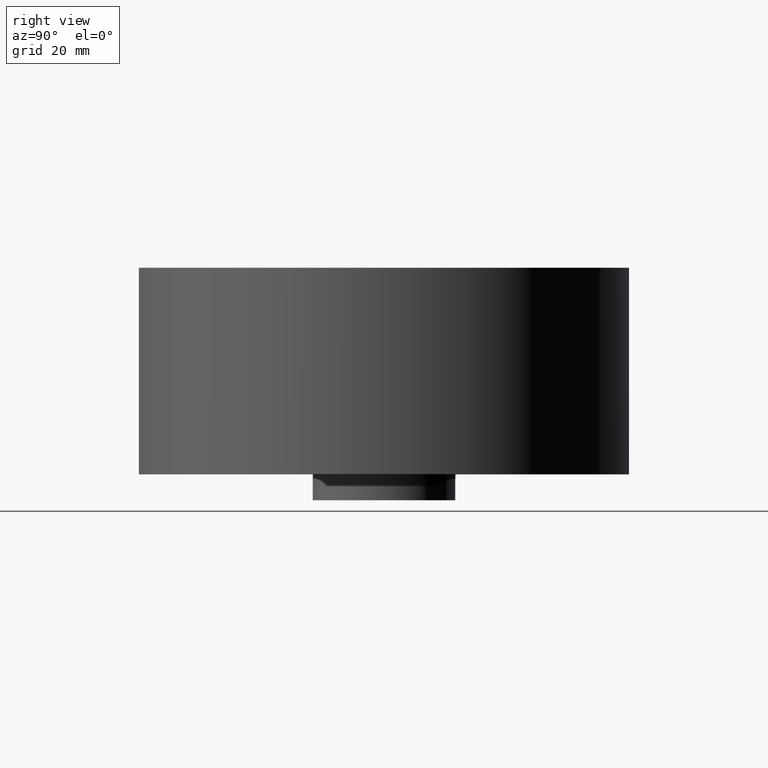
[diagram: clean part render]
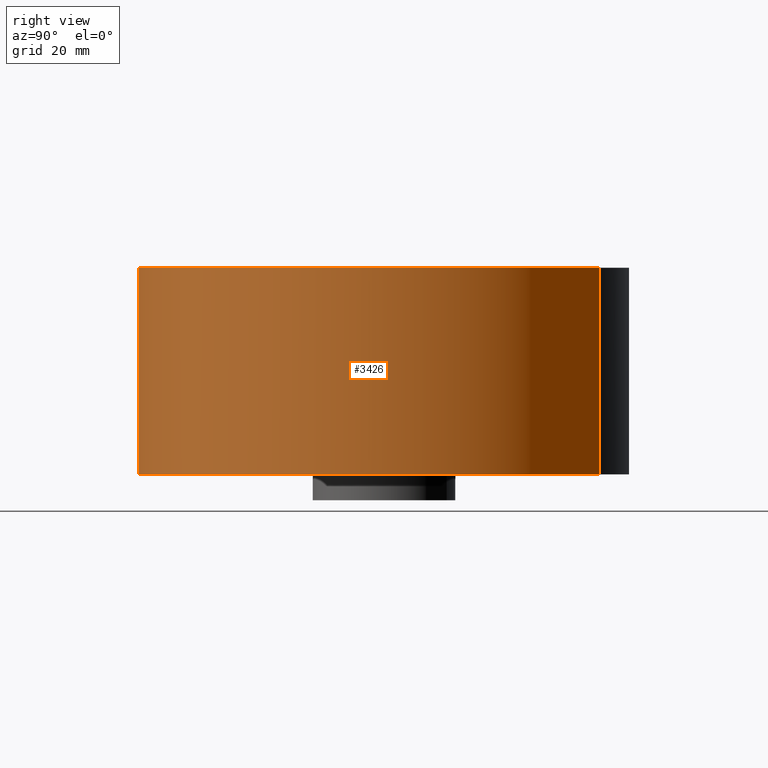
[diagram: same view with one face highlighted and labeled with its STEP entity id]
A machine part, right view. The second image highlights one B-rep face of the part: STEP entity #3426.
In plain terms, the highlighted cylindrical surface (partial cylindrical patch) has radius 60.325 mm, axis along (0, 0, -1).
Its self-contained STEP definition (entity closure, byte-faithful):
#3300=AXIS2_PLACEMENT_3D('Circle Axis2P3D',#3298,#3299,$) ;
#3387=AXIS2_PLACEMENT_3D('Cylinder Axis2P3D',#3384,#3385,#3386) ;
#3417=AXIS2_PLACEMENT_3D('Circle Axis2P3D',#3415,#3416,$) ;
#3293=CARTESIAN_POINT('Vertex',(-1.13863565419,-2.0842585845,-3.65062311089E-014)) ;
#3295=CARTESIAN_POINT('Vertex',(1.13863565419,2.0842585845,-3.65062311089E-014)) ;
#3298=CARTESIAN_POINT('Axis2P3D Location',(0.,0.,0.)) ;
#3384=CARTESIAN_POINT('Axis2P3D Location',(0.,0.,0.875000000003)) ;
#3389=CARTESIAN_POINT('Line Origine',(-1.13863565419,-2.0842585845,1.)) ;
#3393=CARTESIAN_POINT('Vertex',(-1.13863565419,-2.0842585845,2.00000000001)) ;
#3400=CARTESIAN_POINT('Vertex',(1.13863565419,2.0842585845,2.00000000001)) ;
#3403=CARTESIAN_POINT('Line Origine',(1.13863565419,2.0842585845,1.)) ;
#3415=CARTESIAN_POINT('Axis2P3D Location',(0.,0.,2.00000000001)) ;
#3299=DIRECTION('Axis2P3D Direction',(0.,0.,-0.0393700787402)) ;
#3385=DIRECTION('Axis2P3D Direction',(0.,0.,-0.0393700787402)) ;
#3386=DIRECTION('Axis2P3D XDirection',(0.0188750212049,0.0345504945626,0.)) ;
#3390=DIRECTION('Vector Direction',(0.,0.,-0.0393700787402)) ;
#3404=DIRECTION('Vector Direction',(0.,0.,-0.0393700787402)) ;
#3416=DIRECTION('Axis2P3D Direction',(0.,0.,-0.0393700787402)) ;
#3391=VECTOR('Line Direction',#3390,0.0393700787402) ;
#3405=VECTOR('Line Direction',#3404,0.0393700787402) ;
#3421=ORIENTED_EDGE('',*,*,#3302,.F.) ;
#3422=ORIENTED_EDGE('',*,*,#3407,.T.) ;
#3423=ORIENTED_EDGE('',*,*,#3419,.T.) ;
#3424=ORIENTED_EDGE('',*,*,#3395,.F.) ;
#3426=ADVANCED_FACE('PartBody',(#3425),#3388,.T.) ;
#3301=CIRCLE('generated circle',#3300,2.37500000001) ;
#3418=CIRCLE('generated circle',#3417,2.37500000001) ;
#3388=CYLINDRICAL_SURFACE('generated cylinder',#3387,2.37500000001) ;
#3302=EDGE_CURVE('',#3296,#3294,#3301,.T.) ;
#3395=EDGE_CURVE('',#3294,#3394,#3392,.F.) ;
#3407=EDGE_CURVE('',#3296,#3401,#3406,.F.) ;
#3419=EDGE_CURVE('',#3401,#3394,#3418,.T.) ;
#3420=EDGE_LOOP('',(#3421,#3422,#3423,#3424)) ;
#3425=FACE_OUTER_BOUND('',#3420,.T.) ;
#3392=LINE('Line',#3389,#3391) ;
#3406=LINE('Line',#3403,#3405) ;
#3294=VERTEX_POINT('',#3293) ;
#3296=VERTEX_POINT('',#3295) ;
#3394=VERTEX_POINT('',#3393) ;
#3401=VERTEX_POINT('',#3400) ;